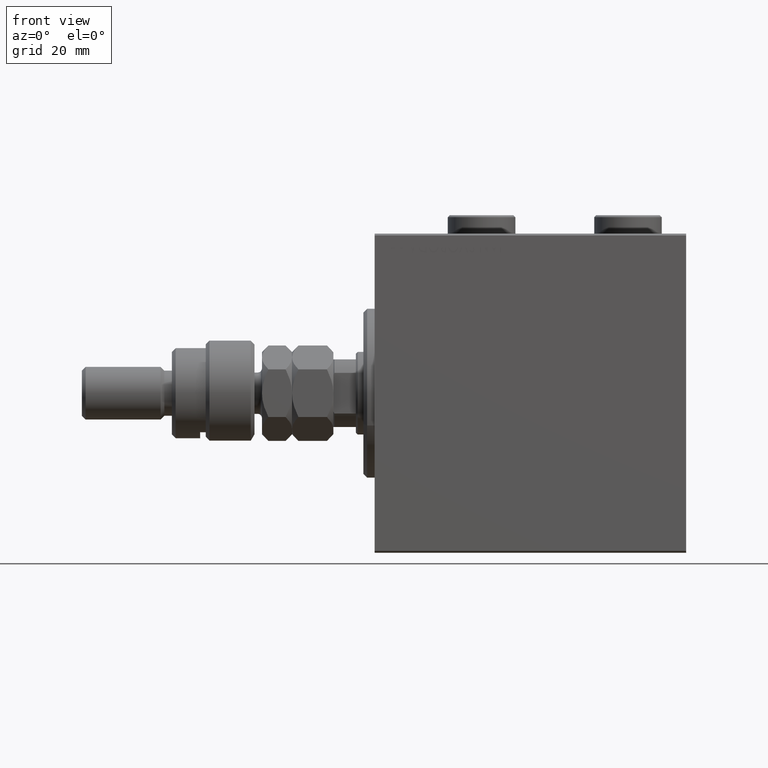
[diagram: clean part render]
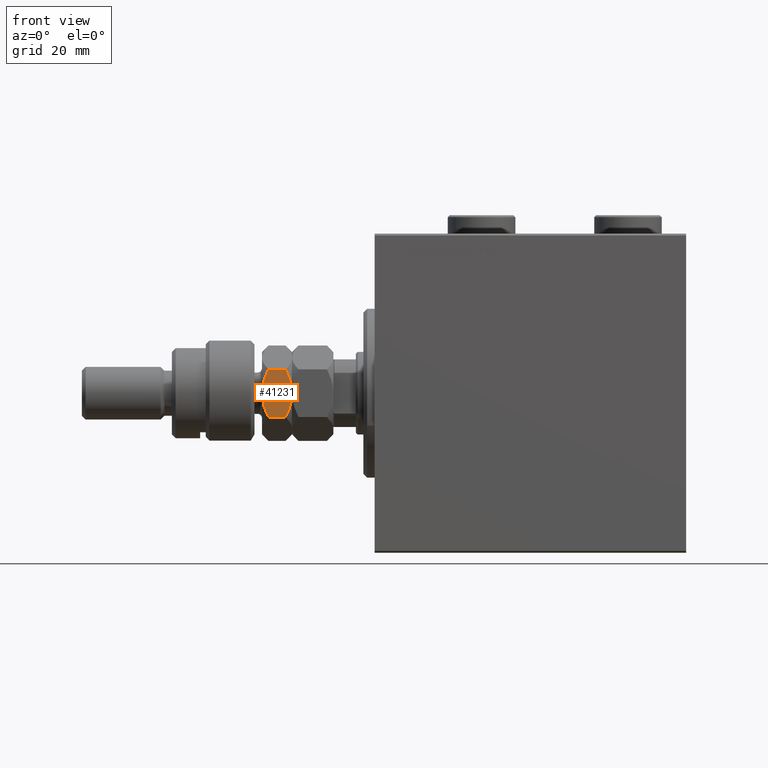
[diagram: same view with one face highlighted and labeled with its STEP entity id]
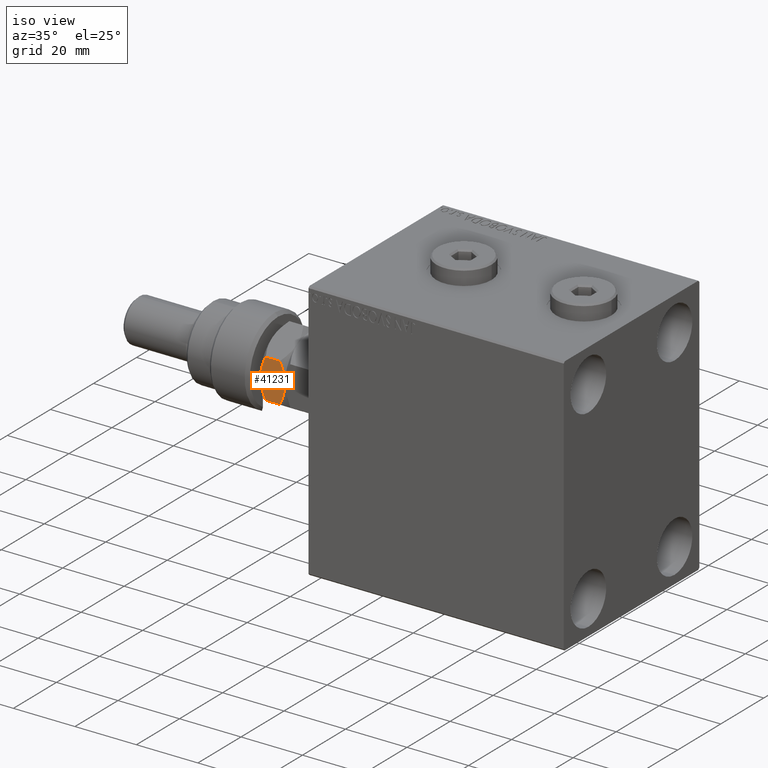
[diagram: same view with one face highlighted and labeled with its STEP entity id]
A machine part, front view. The second image highlights one B-rep face of the part: STEP entity #41231.
A second angle (iso view) of the same face is appended — the face is thin or edge-on in the first view.
In plain terms, the highlighted planar face has unit normal (0, 1, -0).
Its self-contained STEP definition (entity closure, byte-faithful):
#47 = EDGE_LOOP ( 'NONE', ( #17437, #4946, #29885, #37575, #9115, #9948 ) ) ;
#130 = CARTESIAN_POINT ( 'NONE',  ( -6.797443497229144639E-16, -12.70170592217176697, 12.70170592217176697 ) ) ;
#446 = CARTESIAN_POINT ( 'NONE',  ( -1.114322647986502597E-15, -12.70170592217176697, 17.29829407782823125 ) ) ;
#593 = CARTESIAN_POINT ( 'NONE',  ( 10.99999999999999645, -6.350852961085881709, 12.70170592217176164 ) ) ;
#969 = B_SPLINE_CURVE_WITH_KNOTS ( 'NONE', 3,
 ( #29077, #32700, #28596, #6092, #43092, #46721 ),
 .UNSPECIFIED., .F., .F.,
 ( 4, 2, 4 ),
 ( 0.006583488920348303831, 0.009852050593448713131, 0.01312061226654912330 ),
 .UNSPECIFIED. ) ;
#987 = B_SPLINE_CURVE_WITH_KNOTS ( 'NONE', 3,
 ( #593, #37386, #19484, #22417, #37152, #11742, #30372, #26518 ),
 .UNSPECIFIED., .F., .F.,
 ( 4, 2, 2, 4 ),
 ( 2.544311317614349830E-07, 0.003291871675740029504, 0.004937680298044164716, 0.006583488920348300362 ),
 .UNSPECIFIED. ) ;
#4320 = CARTESIAN_POINT ( 'NONE',  ( 4.529374112020106757, -10.08667055933643830, 18.95634070256486936 ) ) ;
#4389 = B_SPLINE_CURVE_WITH_KNOTS ( 'NONE', 3,
 ( #446, #26141, #40861, #12078, #22274, #4320, #29994, #14983 ),
 .UNSPECIFIED., .F., .F.,
 ( 4, 2, 2, 4 ),
 ( 2.544311317622334175E-07, 0.003291871675740033840, 0.004937680298044169920, 0.006583488920348303831 ),
 .UNSPECIFIED. ) ;
#4946 = ORIENTED_EDGE ( 'NONE', *, *, #26085, .F. ) ;
#5802 = CARTESIAN_POINT ( 'NONE',  ( -1.239917741184855327E-15, -12.70170592217176697, 19.00000000000000000 ) ) ;
#5941 = VERTEX_POINT ( 'NONE', #17168 ) ;
#6092 = CARTESIAN_POINT ( 'NONE',  ( 9.251785468064186446, -7.360185091700238935, 18.22231519547796097 ) ) ;
#6156 = CARTESIAN_POINT ( 'NONE',  ( 5.499999999999994671, -9.526279441628823008, 11.00000000000000000 ) ) ;
#6598 = EDGE_CURVE ( 'NONE', #27580, #47332, #987, .T. ) ;
#8230 = VERTEX_POINT ( 'NONE', #130 ) ;
#8437 = EDGE_CURVE ( 'NONE', #46924, #8230, #22811, .T. ) ;
#8836 = EDGE_CURVE ( 'NONE', #46924, #25205, #4389, .T. ) ;
#9115 = ORIENTED_EDGE ( 'NONE', *, *, #8437, .T. ) ;
#9948 = ORIENTED_EDGE ( 'NONE', *, *, #10610, .F. ) ;
#10610 = EDGE_CURVE ( 'NONE', #47332, #8230, #36608, .T. ) ;
#11742 = CARTESIAN_POINT ( 'NONE',  ( 6.470625887979892354, -8.965888323921216596, 11.04365929743512531 ) ) ;
#12078 = CARTESIAN_POINT ( 'NONE',  ( 3.115032419653386064, -10.90324111615047187, 18.67178078790958295 ) ) ;
#14005 = DIRECTION ( 'NONE',  ( -0.8660254037844384856, -0.5000000000000002220, 0.000000000000000000 ) ) ;
#14260 = VECTOR ( 'NONE', #15286, 1000.000000000000000 ) ;
#14637 = CARTESIAN_POINT ( 'NONE',  ( 0.8614806024966414899, -12.20432986441868906, 12.20432986441860912 ) ) ;
#14983 = CARTESIAN_POINT ( 'NONE',  ( 5.499999999999998224, -9.526279441628817679, 19.00000000000000000 ) ) ;
#15286 = DIRECTION ( 'NONE',  ( -0.000000000000000000, -0.000000000000000000, -1.000000000000000000 ) ) ;
#16383 = EDGE_CURVE ( 'NONE', #25205, #5941, #969, .T. ) ;
#16704 = FACE_OUTER_BOUND ( 'NONE', #47, .T. ) ;
#17168 = CARTESIAN_POINT ( 'NONE',  ( 10.99999999999999645, -6.350852961085881709, 17.29829407782823480 ) ) ;
#17437 = ORIENTED_EDGE ( 'NONE', *, *, #6598, .F. ) ;
#18850 = CARTESIAN_POINT ( 'NONE',  ( -1.114322647986502597E-15, -12.70170592217176697, 17.29829407782823125 ) ) ;
#19210 = CARTESIAN_POINT ( 'NONE',  ( 10.99999999999999645, -6.350852961085881709, 19.00000000000000000 ) ) ;
#19484 = CARTESIAN_POINT ( 'NONE',  ( 9.255521992360788985, -7.358027808391761404, 11.78062338754677718 ) ) ;
#20134 = CARTESIAN_POINT ( 'NONE',  ( -6.797443497229144639E-16, -12.70170592217176697, 12.70170592217176697 ) ) ;
#22169 = CARTESIAN_POINT ( 'NONE',  ( 4.543329525579420824, -10.07861339756131080, 11.00000000000000888 ) ) ;
#22274 = CARTESIAN_POINT ( 'NONE',  ( 3.579894028994818900, -10.63485314086127076, 18.79187792513291910 ) ) ;
#22417 = CARTESIAN_POINT ( 'NONE',  ( 7.884967580346608607, -8.149317767107175925, 11.32821921209040283 ) ) ;
#22811 = LINE ( 'NONE', #26428, #14260 ) ;
#23816 = DIRECTION ( 'NONE',  ( -0.000000000000000000, -0.000000000000000000, -1.000000000000000000 ) ) ;
#25205 = VERTEX_POINT ( 'NONE', #25634 ) ;
#25634 = CARTESIAN_POINT ( 'NONE',  ( 5.499999999999998224, -9.526279441628817679, 19.00000000000000000 ) ) ;
#26085 = EDGE_CURVE ( 'NONE', #5941, #27580, #38313, .T. ) ;
#26141 = CARTESIAN_POINT ( 'NONE',  ( 0.8624791307172129384, -12.20375336388175036, 17.79624663611825142 ) ) ;
#26428 = CARTESIAN_POINT ( 'NONE',  ( -1.239917741184855327E-15, -12.70170592217176697, 19.00000000000000000 ) ) ;
#26518 = CARTESIAN_POINT ( 'NONE',  ( 5.499999999999994671, -9.526279441628823008, 11.00000000000000000 ) ) ;
#27580 = VERTEX_POINT ( 'NONE', #46210 ) ;
#28596 = CARTESIAN_POINT ( 'NONE',  ( 7.397073880711843685, -8.431003325927234116, 18.83109139163523693 ) ) ;
#29077 = CARTESIAN_POINT ( 'NONE',  ( 5.499999999999998224, -9.526279441628817679, 19.00000000000000000 ) ) ;
#29885 = ORIENTED_EDGE ( 'NONE', *, *, #16383, .F. ) ;
#29994 = CARTESIAN_POINT ( 'NONE',  ( 5.018290712253357988, -9.804394428580488707, 18.99999999999999645 ) ) ;
#30372 = CARTESIAN_POINT ( 'NONE',  ( 5.981709287746636683, -9.248164454677160862, 11.00000000000000355 ) ) ;
#31474 = PLANE ( 'NONE',  #43848 ) ;
#32700 = CARTESIAN_POINT ( 'NONE',  ( 6.456670474420574735, -8.973945485696335211, 18.99999999999999289 ) ) ;
#33037 = CARTESIAN_POINT ( 'NONE',  ( 3.602926119288149653, -10.62155555733041901, 11.16890860836476307 ) ) ;
#35337 = DIRECTION ( 'NONE',  ( -0.5000000000000003331, 0.8660254037844385966, 0.000000000000000000 ) ) ;
#36608 = B_SPLINE_CURVE_WITH_KNOTS ( 'NONE', 3,
 ( #36656, #22169, #33037, #47763, #14637, #20134 ),
 .UNSPECIFIED., .F., .F.,
 ( 4, 2, 4 ),
 ( 0.006583488920348300362, 0.009852050593448711396, 0.01312061226654912330 ),
 .UNSPECIFIED. ) ;
#36656 = CARTESIAN_POINT ( 'NONE',  ( 5.499999999999994671, -9.526279441628823008, 11.00000000000000000 ) ) ;
#37152 = CARTESIAN_POINT ( 'NONE',  ( 7.420105971005177103, -8.417705742396377033, 11.20812207486707557 ) ) ;
#37386 = CARTESIAN_POINT ( 'NONE',  ( 10.13752086928278295, -6.848805519375900985, 12.20375336388174681 ) ) ;
#37575 = ORIENTED_EDGE ( 'NONE', *, *, #8836, .F. ) ;
#38313 = LINE ( 'NONE', #19210, #45031 ) ;
#40861 = CARTESIAN_POINT ( 'NONE',  ( 1.744478007639206574, -11.69453107486588728, 18.21937661245321749 ) ) ;
#41231 = ADVANCED_FACE ( 'NONE', ( #16704 ), #31474, .F. ) ;
#43092 = CARTESIAN_POINT ( 'NONE',  ( 10.13851939750335163, -6.848229018838960513, 17.79567013558139621 ) ) ;
#43848 = AXIS2_PLACEMENT_3D ( 'NONE', #5802, #35337, #14005 ) ;
#45031 = VECTOR ( 'NONE', #23816, 1000.000000000000000 ) ;
#46210 = CARTESIAN_POINT ( 'NONE',  ( 10.99999999999999645, -6.350852961085881709, 12.70170592217176164 ) ) ;
#46721 = CARTESIAN_POINT ( 'NONE',  ( 10.99999999999999645, -6.350852961085881709, 17.29829407782823480 ) ) ;
#46924 = VERTEX_POINT ( 'NONE', #18850 ) ;
#47332 = VERTEX_POINT ( 'NONE', #6156 ) ;
#47763 = CARTESIAN_POINT ( 'NONE',  ( 1.748214531935804894, -11.69237379155740975, 11.77768480452202837 ) ) ;